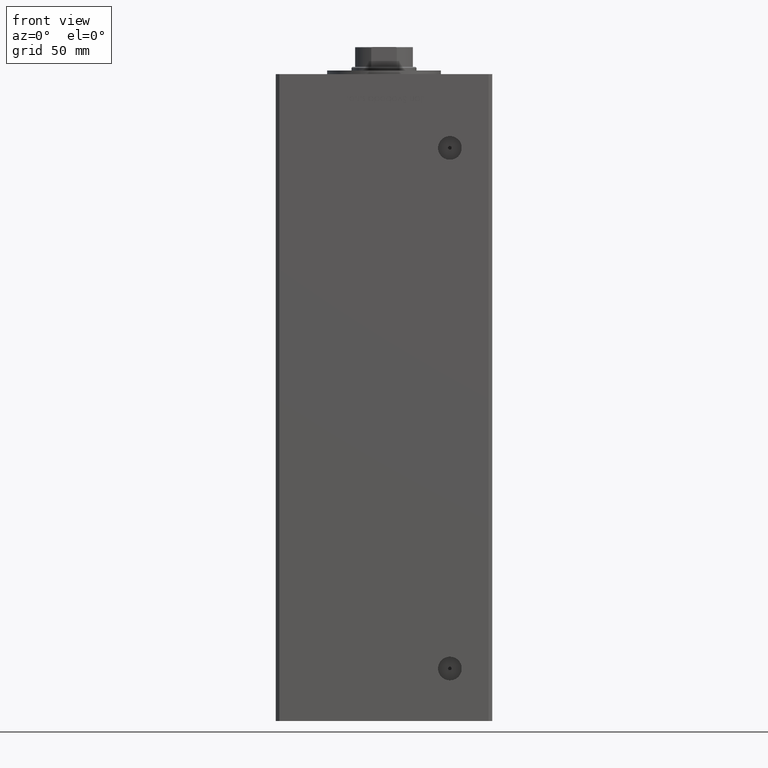
[diagram: clean part render]
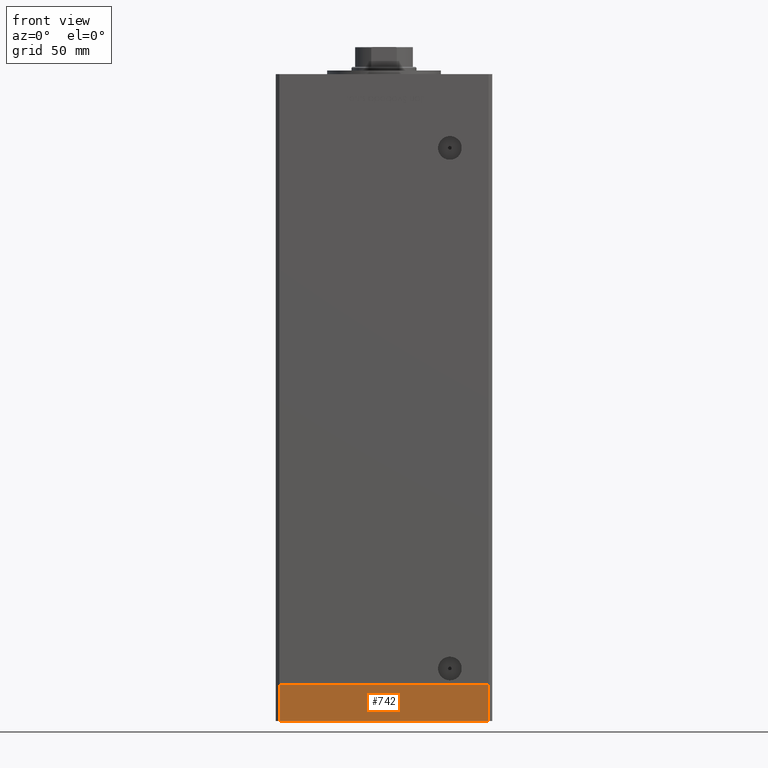
[diagram: same view with one face highlighted and labeled with its STEP entity id]
A machine part, front view. The second image highlights one B-rep face of the part: STEP entity #742.
In plain terms, the highlighted planar face has unit normal (-0, -1, -0).
Its self-contained STEP definition (entity closure, byte-faithful):
#493 = CARTESIAN_POINT ( 'NONE',  ( -57.99999999999997868, -51.00000000000001421, -20.00000000000000000 ) ) ;
#742 = ADVANCED_FACE ( 'NONE', ( #34936 ), #50999, .T. ) ;
#780 = DIRECTION ( 'NONE',  ( 0.000000000000000000, 0.000000000000000000, 1.000000000000000000 ) ) ;
#878 = LINE ( 'NONE', #49362, #5116 ) ;
#1126 = CARTESIAN_POINT ( 'NONE',  ( 58.00000000000000000, -51.00000000000000711, 0.000000000000000000 ) ) ;
#1667 = VECTOR ( 'NONE', #780, 1000.000000000000000 ) ;
#5116 = VECTOR ( 'NONE', #9302, 1000.000000000000000 ) ;
#6849 = EDGE_LOOP ( 'NONE', ( #20269, #13249, #15876, #42502 ) ) ;
#7256 = LINE ( 'NONE', #34939, #20618 ) ;
#8945 = CARTESIAN_POINT ( 'NONE',  ( 58.00000000000000000, -51.00000000000000711, -20.00000000000000000 ) ) ;
#9302 = DIRECTION ( 'NONE',  ( 0.000000000000000000, 0.000000000000000000, 1.000000000000000000 ) ) ;
#11532 = DIRECTION ( 'NONE',  ( 1.000000000000000000, 1.196361017915039486E-16, 0.000000000000000000 ) ) ;
#13249 = ORIENTED_EDGE ( 'NONE', *, *, #23266, .F. ) ;
#14898 = DIRECTION ( 'NONE',  ( 1.196361017915039486E-16, -1.000000000000000000, 0.000000000000000000 ) ) ;
#15876 = ORIENTED_EDGE ( 'NONE', *, *, #34153, .T. ) ;
#16360 = EDGE_CURVE ( 'NONE', #34086, #37487, #25015, .T. ) ;
#20269 = ORIENTED_EDGE ( 'NONE', *, *, #47211, .F. ) ;
#20618 = VECTOR ( 'NONE', #23310, 1000.000000000000000 ) ;
#23061 = CARTESIAN_POINT ( 'NONE',  ( -57.99999999999997868, -51.00000000000001421, -20.00000000000000000 ) ) ;
#23266 = EDGE_CURVE ( 'NONE', #46322, #30346, #878, .T. ) ;
#23310 = DIRECTION ( 'NONE',  ( 1.000000000000000000, 1.196361017915039486E-16, 0.000000000000000000 ) ) ;
#25015 = LINE ( 'NONE', #8945, #1667 ) ;
#27535 = CARTESIAN_POINT ( 'NONE',  ( 58.00000000000000000, -51.00000000000000711, -20.00000000000000000 ) ) ;
#30346 = VERTEX_POINT ( 'NONE', #51734 ) ;
#31698 = AXIS2_PLACEMENT_3D ( 'NONE', #23061, #14898, #43104 ) ;
#34086 = VERTEX_POINT ( 'NONE', #27535 ) ;
#34153 = EDGE_CURVE ( 'NONE', #46322, #34086, #7256, .T. ) ;
#34936 = FACE_OUTER_BOUND ( 'NONE', #6849, .T. ) ;
#34939 = CARTESIAN_POINT ( 'NONE',  ( -57.99999999999997868, -51.00000000000001421, -20.00000000000000000 ) ) ;
#37487 = VERTEX_POINT ( 'NONE', #1126 ) ;
#42502 = ORIENTED_EDGE ( 'NONE', *, *, #16360, .T. ) ;
#43104 = DIRECTION ( 'NONE',  ( 1.000000000000000000, 1.196361017915039486E-16, 0.000000000000000000 ) ) ;
#46322 = VERTEX_POINT ( 'NONE', #493 ) ;
#47211 = EDGE_CURVE ( 'NONE', #30346, #37487, #51074, .T. ) ;
#47285 = VECTOR ( 'NONE', #11532, 1000.000000000000000 ) ;
#47379 = CARTESIAN_POINT ( 'NONE',  ( -57.99999999999997868, -51.00000000000001421, 0.000000000000000000 ) ) ;
#49362 = CARTESIAN_POINT ( 'NONE',  ( -57.99999999999997868, -51.00000000000001421, -20.00000000000000000 ) ) ;
#50999 = PLANE ( 'NONE',  #31698 ) ;
#51074 = LINE ( 'NONE', #47379, #47285 ) ;
#51734 = CARTESIAN_POINT ( 'NONE',  ( -57.99999999999997868, -51.00000000000001421, 0.000000000000000000 ) ) ;